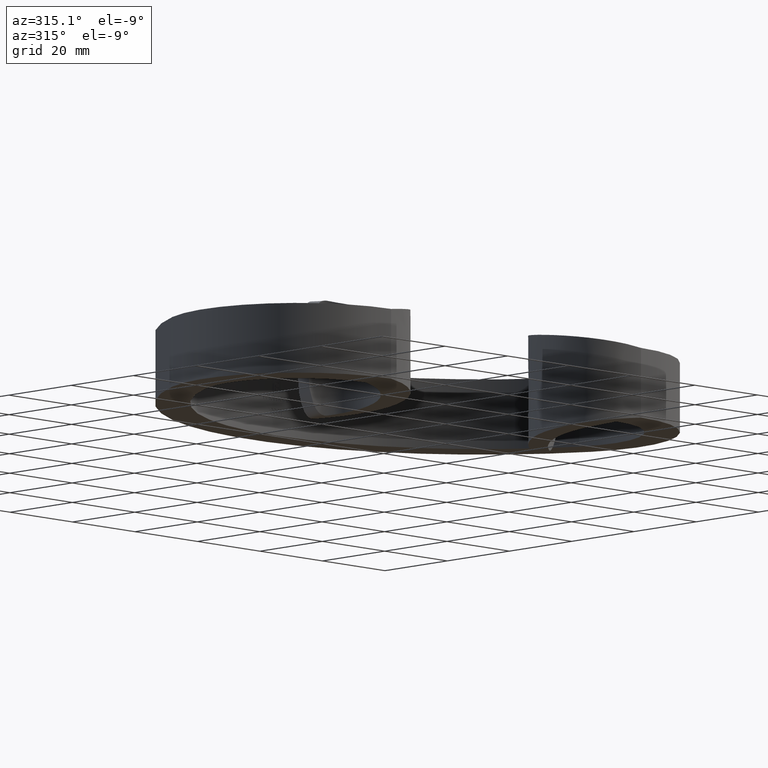
[diagram: clean part render]
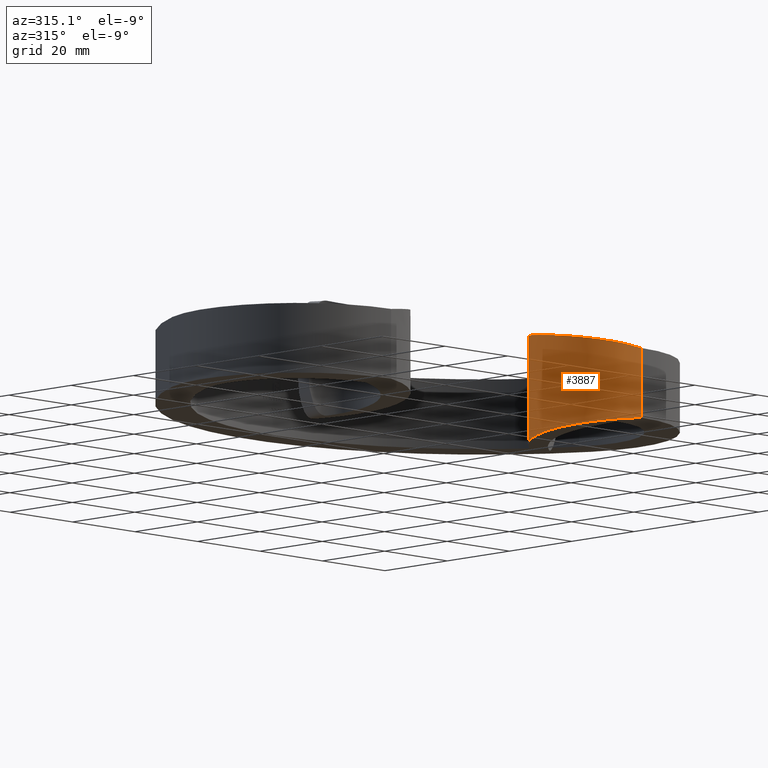
[diagram: same view with one face highlighted and labeled with its STEP entity id]
A machine part, auxiliary view. The second image highlights one B-rep face of the part: STEP entity #3887.
In plain terms, the highlighted face is a freeform B-spline surface patch.
Its self-contained STEP definition (entity closure, byte-faithful):
#24 = CARTESIAN_POINT ( 'NONE',  ( 37.29862764231974381, -12.74606910560912887, 12.92132388384466424 ) ) ;
#68 = CARTESIAN_POINT ( 'NONE',  ( 29.25184079106775314, -38.21318353949611435, 9.503446292758994218 ) ) ;
#74 = CARTESIAN_POINT ( 'NONE',  ( 39.01710257286399042, -12.55518140007928096, 13.87492381433971111 ) ) ;
#93 = CARTESIAN_POINT ( 'NONE',  ( 39.19997641045297598, -12.54735518590130461, 9.413016045099492857 ) ) ;
#178 = CARTESIAN_POINT ( 'NONE',  ( 39.80767790704334885, -12.51083109698406659, 6.511126165595791271 ) ) ;
#200 = LINE ( 'NONE', #1069, #4706 ) ;
#213 = ORIENTED_EDGE ( 'NONE', *, *, #7990, .T. ) ;
#216 = B_SPLINE_CURVE_WITH_KNOTS ( 'NONE', 3,
 ( #10016, #4314, #10982, #661, #2444, #11071, #6308, #2622, #1624, #3479, #9082, #10945, #11869, #11832, #581, #7281 ),
 .UNSPECIFIED., .F., .F.,
 ( 4, 1, 1, 1, 1, 1, 1, 1, 1, 1, 1, 1, 1, 4 ),
 ( 0.000000000000000000, 0.07643944691584819706, 0.1540096069160411529, 0.2330094117785480312, 0.3131500124201943014, 0.3945330707136094905, 0.4773147407482481452, 0.5401686603511797191, 0.6038891507428142402, 0.6681790321241890540, 0.7333217182116463784, 0.7990563422923470105, 0.8656197462576271651, 0.9027524826641176725 ),
 .UNSPECIFIED. ) ;
#255 = CARTESIAN_POINT ( 'NONE',  ( 39.81209067395823809, -12.51058108861385598, 6.477346912635616683 ) ) ;
#508 = CARTESIAN_POINT ( 'NONE',  ( 38.37130600898095878, -12.61208654869303025, -11.48021962687403885 ) ) ;
#543 = CARTESIAN_POINT ( 'NONE',  ( 37.46810401790398970, -12.72042704771613231, -12.75359945979227483 ) ) ;
#581 = CARTESIAN_POINT ( 'NONE',  ( 35.27376873676498548, -13.24552783198185679, -13.38836232621470756 ) ) ;
#627 = CARTESIAN_POINT ( 'NONE',  ( 39.83221756762518595, -12.50944203243038721, -6.317923149112874448 ) ) ;
#647 = CARTESIAN_POINT ( 'NONE',  ( 40.00000000000000000, -42.49999999999998579, 8.000000000000000000 ) ) ;
#661 = CARTESIAN_POINT ( 'NONE',  ( 32.38241363854125154, -40.60731167138313680, -9.004700799622668228 ) ) ;
#763 = CARTESIAN_POINT ( 'NONE',  ( 29.25184079106775314, -38.21318353949611435, 9.503446292758994218 ) ) ;
#823 = CARTESIAN_POINT ( 'NONE',  ( 39.99999999999997158, -12.50000000000004974, 3.545507528704540334 ) ) ;
#913 = CARTESIAN_POINT ( 'NONE',  ( 26.05590940528936272, -21.71262454500754302, 11.75140612995420675 ) ) ;
#921 = CARTESIAN_POINT ( 'NONE',  ( 37.05083497999392250, -12.66557074052261100, 13.62471128583585589 ) ) ;
#942 = CARTESIAN_POINT ( 'NONE',  ( 38.07910517191147193, -12.64190911677608575, 11.97497403436420704 ) ) ;
#980 = CARTESIAN_POINT ( 'NONE',  ( 38.80757764964339884, -12.57488187159106019, 10.54789356230748076 ) ) ;
#1019 = CARTESIAN_POINT ( 'NONE',  ( 36.01891193912119604, -13.02619226180549106, 13.48720801472414976 ) ) ;
#1069 = CARTESIAN_POINT ( 'NONE',  ( 39.99999999999997158, -12.50000000000004974, 14.00000000000000000 ) ) ;
#1181 = CARTESIAN_POINT ( 'NONE',  ( 39.21734304168334972, -12.54622589925770981, 9.354587291926364401 ) ) ;
#1279 = CARTESIAN_POINT ( 'NONE',  ( 39.99999999999997158, -12.50000000000004974, -3.545507529711071637 ) ) ;
#1290 = ORIENTED_EDGE ( 'NONE', *, *, #3238, .T. ) ;
#1462 = B_SPLINE_SURFACE_WITH_KNOTS ( 'NONE', 1, 3, ( 
 ( #1722, #1590, #9180, #8264, #763, #7429, #1677, #5469, #1885, #10316, #2850, #7561, #4744, #1812, #921, #74, #6543 ),
 ( #11258, #2924, #4628, #2768, #9396, #9430, #12144, #11363, #4586, #5611, #3704, #3849, #7629, #5682, #6667, #8488, #11222 ) ),
 .UNSPECIFIED., .F., .F., .F.,
 ( 2, 2 ),
 ( 4, 1, 1, 1, 1, 1, 1, 1, 1, 1, 1, 1, 1, 1, 4 ),
 ( 0.000000000000000000, 1.000000000000000000 ),
 ( 0.000000000000000000, 0.07643944691584819706, 0.1540096069160411529, 0.2330094117785480312, 0.3131500124201943014, 0.3945330707136094905, 0.4773147407482481452, 0.5401686603511797191, 0.6038891507428142402, 0.6681790321241890540, 0.7333217182116463784, 0.7990563422923470105, 0.8656197462576271651, 0.9328260272710567902, 1.000000000000000000 ),
 .UNSPECIFIED. ) ;
#1506 = CARTESIAN_POINT ( 'NONE',  ( 39.08791007719344890, -12.55454230701607266, -9.803116106679388153 ) ) ;
#1590 = CARTESIAN_POINT ( 'NONE',  ( 38.68746648217916118, -42.39879736232403928, 8.167136860540608723 ) ) ;
#1624 = CARTESIAN_POINT ( 'NONE',  ( 25.19733021883143920, -24.53388138580784528, -11.37779541540063555 ) ) ;
#1677 = CARTESIAN_POINT ( 'NONE',  ( 25.33521997203124698, -31.39402598544253209, 10.50442781793250546 ) ) ;
#1722 = CARTESIAN_POINT ( 'NONE',  ( 40.00000000000001421, -42.50000000000000711, 8.000000000000000000 ) ) ;
#1812 = CARTESIAN_POINT ( 'NONE',  ( 34.23629465016007600, -13.55430790121540419, 13.25192717049105617 ) ) ;
#1832 = CARTESIAN_POINT ( 'NONE',  ( 38.02207724577230152, -12.64823826273697982, 12.06200927439519077 ) ) ;
#1869 = CARTESIAN_POINT ( 'NONE',  ( 38.08682525757591719, -12.64106418480310801, 11.96298757429477710 ) ) ;
#1885 = CARTESIAN_POINT ( 'NONE',  ( 25.19733021883143920, -24.53388138580784528, 11.37779541540063377 ) ) ;
#1986 = CARTESIAN_POINT ( 'NONE',  ( 39.62077276828788541, -12.52153642898252528, 7.686744082658159449 ) ) ;
#2027 = CARTESIAN_POINT ( 'NONE',  ( 39.22967689582918638, -12.54542734868828902, 9.312656471300529759 ) ) ;
#2065 = CARTESIAN_POINT ( 'NONE',  ( 39.66530259387380397, -12.51896180625841026, 7.444922996180748598 ) ) ;
#2117 = EDGE_CURVE ( 'NONE', #9697, #9240, #216, .T. ) ;
#2325 = CARTESIAN_POINT ( 'NONE',  ( 38.10218519532698878, -12.63939293392273022, -11.93896470505600682 ) ) ;
#2365 = CARTESIAN_POINT ( 'NONE',  ( 39.47790584736532793, -12.52996484017449319, -8.366674763846742024 ) ) ;
#2408 = CARTESIAN_POINT ( 'NONE',  ( 39.91054606326733989, -12.50502421543450282, -5.601592000352023426 ) ) ;
#2420 = B_SPLINE_CURVE_WITH_KNOTS ( 'NONE', 3,
 ( #8095, #7117, #8057, #2408, #9979, #5166, #627, #9045, #11919, #10951, #7201, #11760, #2365, #9006, #8960, #3281, #3362, #7080, #3319, #9943, #4240, #1506, #3445, #2450, #10910, #508, #5252, #10874, #7244, #9902, #11797, #9089, #2325, #3403, #6190, #10986, #6275, #543, #8182, #10061, #11838, #10022, #9131, #6231, #4318, #5288, #4200, #7158 ),
 .UNSPECIFIED., .F., .F.,
 ( 4, 1, 1, 1, 1, 2, 2, 2, 2, 1, 1, 1, 1, 2, 2, 2, 2, 1, 1, 1, 1, 1, 2, 2, 2, 2, 1, 1, 1, 2, 2, 4 ),
 ( 0.000000000000000000, 0.1249999999999966416, 0.1874999999999948097, 0.2187499999999939493, 0.2343749999999934219, 0.2421874999999930611, 0.2499999999999926725, 0.3749999999999865663, 0.4374999999999836242, 0.4687499999999821809, 0.4843749999999817368, 0.4921874999999819589, 0.4960937499999820699, 0.4980468749999821254, 0.4999999999999821809, 0.6249999999999811262, 0.6874999999999805711, 0.7187499999999797939, 0.7343749999999791278, 0.7421874999999781286, 0.7460937499999777955, 0.7480468749999782396, 0.7490234374999784617, 0.7499999999999786837, 0.8124999999999835687, 0.8437499999999855671, 0.8593749999999873435, 0.8671874999999874545, 0.8710937499999876765, 0.8730468749999884537, 0.8749999999999891198, 1.000000000000000000 ),
 .UNSPECIFIED. ) ;
#2444 = CARTESIAN_POINT ( 'NONE',  ( 29.25184079106775314, -38.21318353949611435, -9.503446292758999547 ) ) ;
#2450 = CARTESIAN_POINT ( 'NONE',  ( 38.62716495390422011, -12.58928020139541815, -10.96860529128226780 ) ) ;
#2622 = CARTESIAN_POINT ( 'NONE',  ( 24.87033295036835412, -27.80776863644313579, -10.96081425774909057 ) ) ;
#2715 = CARTESIAN_POINT ( 'NONE',  ( 26.84580894462402512, -35.05877054887470479, 10.00383071811035052 ) ) ;
#2754 = CARTESIAN_POINT ( 'NONE',  ( 37.10365236991736282, -12.78077726580409035, 13.06906585817377398 ) ) ;
#2768 = CARTESIAN_POINT ( 'NONE',  ( 32.38241363854125154, -40.60731167138313680, -9.004700799622668228 ) ) ;
#2850 = CARTESIAN_POINT ( 'NONE',  ( 27.45806106993893536, -19.09484801626853567, 12.12772151566155543 ) ) ;
#2870 = CARTESIAN_POINT ( 'NONE',  ( 37.95512529771298205, -12.65587441767542920, 12.16075678187272757 ) ) ;
#2924 = CARTESIAN_POINT ( 'NONE',  ( 38.68746648217916118, -42.39879736232403928, -8.167136860540608723 ) ) ;
#3026 = CARTESIAN_POINT ( 'NONE',  ( 39.22474835837039109, -12.54574620258749817, 9.329442633762308645 ) ) ;
#3238 = EDGE_CURVE ( 'NONE', #6639, #9240, #2420, .T. ) ;
#3281 = CARTESIAN_POINT ( 'NONE',  ( 39.29905651566070190, -12.54099010926559643, -9.069264074020793487 ) ) ;
#3319 = CARTESIAN_POINT ( 'NONE',  ( 39.25254712197023110, -12.54395475112463032, -9.233830524549331287 ) ) ;
#3362 = CARTESIAN_POINT ( 'NONE',  ( 39.27207681382706994, -12.54270505402697466, -9.165432683133198921 ) ) ;
#3403 = CARTESIAN_POINT ( 'NONE',  ( 38.10105192132130014, -12.63951571670944674, -11.94074642428696897 ) ) ;
#3445 = CARTESIAN_POINT ( 'NONE',  ( 38.91384058479796693, -12.56645828140503696, -10.29777622002363557 ) ) ;
#3466 = DIRECTION ( 'NONE',  ( 0.000000000000000000, 0.000000000000000000, -1.000000000000000000 ) ) ;
#3479 = CARTESIAN_POINT ( 'NONE',  ( 26.05590940528936272, -21.71262454500754302, -11.75140612995421208 ) ) ;
#3628 = VERTEX_POINT ( 'NONE', #823 ) ;
#3704 = CARTESIAN_POINT ( 'NONE',  ( 27.45806106993893536, -19.09484801626853567, -12.12772151566153234 ) ) ;
#3797 = CARTESIAN_POINT ( 'NONE',  ( 39.02958865476692552, -12.55881556869204019, 9.945505563500859125 ) ) ;
#3849 = CARTESIAN_POINT ( 'NONE',  ( 29.33266354703817314, -16.81741441169711138, -12.50148243620112964 ) ) ;
#3887 = ADVANCED_FACE ( 'NONE', ( #10222 ), #1462, .F. ) ;
#3905 = CARTESIAN_POINT ( 'NONE',  ( 39.75518447727354499, -12.51381228913332322, 6.889504973989690306 ) ) ;
#4020 = CARTESIAN_POINT ( 'NONE',  ( 39.78641453998773869, -12.51203704308514375, 6.669443938089033352 ) ) ;
#4025 = ORIENTED_EDGE ( 'NONE', *, *, #5495, .T. ) ;
#4029 = CARTESIAN_POINT ( 'NONE',  ( 35.79395304833320068, -13.09240974371932253, -13.45737794795045694 ) ) ;
#4200 = CARTESIAN_POINT ( 'NONE',  ( 36.24561664460778587, -12.95946089280361413, -13.51727810697719967 ) ) ;
#4240 = CARTESIAN_POINT ( 'NONE',  ( 39.24712706253949790, -12.54430269983731350, -9.252655356265069742 ) ) ;
#4314 = CARTESIAN_POINT ( 'NONE',  ( 38.68746648217916118, -42.39879736232403928, -8.167136860540608723 ) ) ;
#4318 = CARTESIAN_POINT ( 'NONE',  ( 37.14300966077141197, -12.77375008783819510, -13.03940881655805306 ) ) ;
#4580 = CARTESIAN_POINT ( 'NONE',  ( 24.87033295036835412, -27.80776863644313579, 10.96081425774909412 ) ) ;
#4586 = CARTESIAN_POINT ( 'NONE',  ( 25.19733021883143920, -24.53388138580784528, -11.37779541540063555 ) ) ;
#4628 = CARTESIAN_POINT ( 'NONE',  ( 36.04298409383513047, -42.19489507003635964, -8.503882915511125518 ) ) ;
#4691 = CARTESIAN_POINT ( 'NONE',  ( 37.08296777211270268, -12.78451269207606522, 13.08431620026657427 ) ) ;
#4706 = VECTOR ( 'NONE', #10535, 1000.000000000000000 ) ;
#4744 = CARTESIAN_POINT ( 'NONE',  ( 31.62695320964726520, -14.93357274144184998, 12.87747321097610431 ) ) ;
#4770 = CARTESIAN_POINT ( 'NONE',  ( 36.74419631286421861, -12.85040653641364727, 13.29748079346355638 ) ) ;
#4853 = CARTESIAN_POINT ( 'NONE',  ( 39.79924624603342664, -12.51130911792110822, 6.574532984270911484 ) ) ;
#4892 = CARTESIAN_POINT ( 'NONE',  ( 39.47541436109092672, -12.53007725156213681, 8.399073867107670566 ) ) ;
#4930 = B_SPLINE_CURVE_WITH_KNOTS ( 'NONE', 3,
 ( #6722, #1019, #11282, #5633, #4770, #8432, #5745, #4691, #2754, #10296, #5593, #24, #6647, #12166, #8582, #2870, #1832, #6609, #11353, #942, #7580, #1869, #8509, #5667, #980, #9488, #3797, #10408, #5702, #93, #1181, #3026, #2027, #8661, #9642, #4892, #1986, #2065, #10524, #3905, #4020, #4853, #178, #255, #5874, #11461, #5831 ),
 .UNSPECIFIED., .F., .F.,
 ( 4, 2, 1, 1, 1, 1, 2, 2, 2, 1, 1, 1, 1, 1, 2, 2, 2, 2, 1, 1, 1, 1, 2, 2, 2, 2, 1, 1, 2, 2, 4 ),
 ( 0.000000000000000000, 0.06250000000010744183, 0.09375000000016121826, 0.1093750000001882106, 0.1171875000002016859, 0.1210937500002084583, 0.1230468750002117334, 0.1250000000002149947, 0.1875000000002757516, 0.2187500000003053668, 0.2343750000003200218, 0.2421875000003270439, 0.2460937500003304024, 0.2480468750003314848, 0.2490234375003319012, 0.2500000000003322898, 0.3750000000002843836, 0.4375000000002600697, 0.4687500000002477463, 0.4843750000002411404, 0.4921875000002376432, 0.4960937500002357003, 0.4980468750002347567, 0.5000000000002337019, 0.6250000000001750822, 0.6875000000001457723, 0.7187500000001311173, 0.7343750000001239009, 0.7421875000001202372, 0.7500000000001165734, 1.000000000000000000 ),
 .UNSPECIFIED. ) ;
#5166 = CARTESIAN_POINT ( 'NONE',  ( 39.84310123264024384, -12.50882673381629040, -6.228628696938650400 ) ) ;
#5252 = CARTESIAN_POINT ( 'NONE',  ( 38.29170730430028158, -12.61969098982939563, -11.62570812575996371 ) ) ;
#5267 = ORIENTED_EDGE ( 'NONE', *, *, #5542, .T. ) ;
#5288 = CARTESIAN_POINT ( 'NONE',  ( 36.69357708853227251, -12.85349044598287094, -13.38216029347841207 ) ) ;
#5376 = VERTEX_POINT ( 'NONE', #6271 ) ;
#5469 = CARTESIAN_POINT ( 'NONE',  ( 24.87033295036835412, -27.80776863644313579, 10.96081425774909412 ) ) ;
#5495 = EDGE_CURVE ( 'NONE', #8564, #5376, #8289, .T. ) ;
#5506 = CARTESIAN_POINT ( 'NONE',  ( 35.27376873454707606, -13.24552783278278767, 13.38836232591572184 ) ) ;
#5542 = EDGE_CURVE ( 'NONE', #3628, #6639, #200, .T. ) ;
#5593 = CARTESIAN_POINT ( 'NONE',  ( 37.12599139352469990, -12.77677282388260416, 13.05235985921738795 ) ) ;
#5604 = CARTESIAN_POINT ( 'NONE',  ( 25.33521997203124698, -31.39402598544253209, 10.50442781793250546 ) ) ;
#5611 = CARTESIAN_POINT ( 'NONE',  ( 26.05590940528936272, -21.71262454500754302, -11.75140612995421208 ) ) ;
#5633 = CARTESIAN_POINT ( 'NONE',  ( 36.57740238067741245, -12.88745994073680734, 13.36686799954718197 ) ) ;
#5642 = CARTESIAN_POINT ( 'NONE',  ( 33.84295905362245094, -13.76222011626351183, 13.19548148298733636 ) ) ;
#5667 = CARTESIAN_POINT ( 'NONE',  ( 38.52089944263796184, -12.59781801684789038, 11.21398455712261466 ) ) ;
#5682 = CARTESIAN_POINT ( 'NONE',  ( 34.23629465016007600, -13.55430790121540419, -13.25192717049105617 ) ) ;
#5702 = CARTESIAN_POINT ( 'NONE',  ( 39.16489303066778405, -12.54965441921077307, 9.528904954600301735 ) ) ;
#5745 = CARTESIAN_POINT ( 'NONE',  ( 37.03467686859433172, -12.79336772027141222, 13.11887199442940144 ) ) ;
#5831 = CARTESIAN_POINT ( 'NONE',  ( 39.99999999999997158, -12.50000000000004974, 3.545507528704540334 ) ) ;
#5874 = CARTESIAN_POINT ( 'NONE',  ( 39.93863496979133032, -12.50341542069270240, 5.493065830248834658 ) ) ;
#6190 = CARTESIAN_POINT ( 'NONE',  ( 37.94650630233762456, -12.65629502830084263, -12.18311131161203242 ) ) ;
#6231 = CARTESIAN_POINT ( 'NONE',  ( 37.14662017872773703, -12.77311313770421286, -13.03662581832179868 ) ) ;
#6271 = CARTESIAN_POINT ( 'NONE',  ( 35.79395304524511801, -13.09240974480877817, 13.45737794553074274 ) ) ;
#6275 = CARTESIAN_POINT ( 'NONE',  ( 37.54936792816567959, -12.70850219651844526, -12.66884928520555853 ) ) ;
#6308 = CARTESIAN_POINT ( 'NONE',  ( 25.33521997203124698, -31.39402598544253209, -10.50442781793251612 ) ) ;
#6492 = CARTESIAN_POINT ( 'NONE',  ( 29.33266354703817314, -16.81741441169711138, 12.50148243620112432 ) ) ;
#6543 = CARTESIAN_POINT ( 'NONE',  ( 39.99999999999997158, -12.50000000000004974, 14.00000000000000000 ) ) ;
#6594 = ORIENTED_EDGE ( 'NONE', *, *, #11000, .F. ) ;
#6609 = CARTESIAN_POINT ( 'NONE',  ( 38.05538413729744462, -12.64452232033914036, 12.01150881495299494 ) ) ;
#6629 = LINE ( 'NONE', #647, #10428 ) ;
#6639 = VERTEX_POINT ( 'NONE', #1279 ) ;
#6647 = CARTESIAN_POINT ( 'NONE',  ( 37.46223298052788664, -12.72064496300444603, 12.76730743823151570 ) ) ;
#6667 = CARTESIAN_POINT ( 'NONE',  ( 37.05083497999392250, -12.66557074052261100, -13.62471128583585589 ) ) ;
#6722 = CARTESIAN_POINT ( 'NONE',  ( 35.79395304524511801, -13.09240974480877817, 13.45737794553074274 ) ) ;
#7080 = CARTESIAN_POINT ( 'NONE',  ( 39.25842962510142087, -12.54357755792115547, -9.213338035155860695 ) ) ;
#7117 = CARTESIAN_POINT ( 'NONE',  ( 39.99999999999997868, -12.50000000000004974, -4.032928411676128810 ) ) ;
#7158 = CARTESIAN_POINT ( 'NONE',  ( 35.79395304833320068, -13.09240974371932253, -13.45737794795045694 ) ) ;
#7201 = CARTESIAN_POINT ( 'NONE',  ( 39.67266235390589202, -12.51849338026984704, -7.429191661807562852 ) ) ;
#7244 = CARTESIAN_POINT ( 'NONE',  ( 38.14761433803234780, -12.63451750387928385, -11.86672335873445583 ) ) ;
#7281 = CARTESIAN_POINT ( 'NONE',  ( 35.79395304833320068, -13.09240974371932253, -13.45737794795045694 ) ) ;
#7422 = CARTESIAN_POINT ( 'NONE',  ( 40.00000000000001421, -42.50000000000000711, 8.000000000000000000 ) ) ;
#7429 = CARTESIAN_POINT ( 'NONE',  ( 26.84580894462402512, -35.05877054887470479, 10.00383071811035052 ) ) ;
#7536 = CARTESIAN_POINT ( 'NONE',  ( 40.00000000000001421, -42.50000000000000711, -8.000000000000000000 ) ) ;
#7553 = CARTESIAN_POINT ( 'NONE',  ( 32.38241363854125154, -40.60731167138313680, 9.004700799622668228 ) ) ;
#7561 = CARTESIAN_POINT ( 'NONE',  ( 29.33266354703817314, -16.81741441169711138, 12.50148243620112432 ) ) ;
#7580 = CARTESIAN_POINT ( 'NONE',  ( 38.08384311795057187, -12.64139012480512392, 11.96762546157398255 ) ) ;
#7589 = CARTESIAN_POINT ( 'NONE',  ( 25.19733021883143920, -24.53388138580784528, 11.37779541540063377 ) ) ;
#7629 = CARTESIAN_POINT ( 'NONE',  ( 31.62695320964726520, -14.93357274144184998, -12.87747321097610431 ) ) ;
#7990 = EDGE_CURVE ( 'NONE', #5376, #3628, #4930, .T. ) ;
#8057 = CARTESIAN_POINT ( 'NONE',  ( 39.97716048627631125, -12.50128156513625477, -4.760517686162399897 ) ) ;
#8095 = CARTESIAN_POINT ( 'NONE',  ( 39.99999999999997158, -12.50000000000004974, -3.545507529711071637 ) ) ;
#8182 = CARTESIAN_POINT ( 'NONE',  ( 37.34471276917322058, -12.73975094172303635, -12.87044823166126228 ) ) ;
#8191 = EDGE_LOOP ( 'NONE', ( #5267, #1290, #9869, #6594, #4025, #213 ) ) ;
#8264 = CARTESIAN_POINT ( 'NONE',  ( 32.38241363854125154, -40.60731167138313680, 9.004700799622668228 ) ) ;
#8289 = B_SPLINE_CURVE_WITH_KNOTS ( 'NONE', 3,
 ( #7422, #10378, #8441, #7553, #68, #2715, #5604, #4580, #7589, #913, #12176, #6492, #8396, #5642, #5506, #9387 ),
 .UNSPECIFIED., .F., .F.,
 ( 4, 1, 1, 1, 1, 1, 1, 1, 1, 1, 1, 1, 1, 4 ),
 ( 0.000000000000000000, 0.07643944691584819706, 0.1540096069160411529, 0.2330094117785480312, 0.3131500124201943014, 0.3945330707136094905, 0.4773147407482481452, 0.5401686603511797191, 0.6038891507428142402, 0.6681790321241890540, 0.7333217182116463784, 0.7990563422923470105, 0.8656197462576270540, 0.9027524825837476286 ),
 .UNSPECIFIED. ) ;
#8396 = CARTESIAN_POINT ( 'NONE',  ( 31.62695320964726520, -14.93357274144184998, 12.87747321097610431 ) ) ;
#8432 = CARTESIAN_POINT ( 'NONE',  ( 36.93798888465928343, -12.81163643935529706, 13.18387473298643009 ) ) ;
#8441 = CARTESIAN_POINT ( 'NONE',  ( 36.04298409383513047, -42.19489507003635964, 8.503882915511125518 ) ) ;
#8488 = CARTESIAN_POINT ( 'NONE',  ( 39.01710257286399042, -12.55518140007928096, -13.87492381433971111 ) ) ;
#8509 = CARTESIAN_POINT ( 'NONE',  ( 38.31293327847913588, -12.61638704600789396, 11.61071110300901488 ) ) ;
#8564 = VERTEX_POINT ( 'NONE', #9182 ) ;
#8582 = CARTESIAN_POINT ( 'NONE',  ( 37.81987463989389653, -12.67199776794808663, 12.34924817730782287 ) ) ;
#8661 = CARTESIAN_POINT ( 'NONE',  ( 39.23258949061260381, -12.54523919298344126, 9.302701217225338937 ) ) ;
#8960 = CARTESIAN_POINT ( 'NONE',  ( 39.35175669204143389, -12.53767745021046309, -8.875497403835577614 ) ) ;
#9006 = CARTESIAN_POINT ( 'NONE',  ( 39.39476787364452548, -12.53502907559193957, -8.706968698061885448 ) ) ;
#9045 = CARTESIAN_POINT ( 'NONE',  ( 39.82484287877256435, -12.50985915749555488, -6.377425288795744329 ) ) ;
#9082 = CARTESIAN_POINT ( 'NONE',  ( 27.45806106993893536, -19.09484801626853567, -12.12772151566153234 ) ) ;
#9089 = CARTESIAN_POINT ( 'NONE',  ( 38.10569305939678486, -12.63901311085273704, -11.93344563851300144 ) ) ;
#9131 = CARTESIAN_POINT ( 'NONE',  ( 37.15713364853539247, -12.77126229035711091, -13.02848987198568764 ) ) ;
#9180 = CARTESIAN_POINT ( 'NONE',  ( 36.04298409383513047, -42.19489507003635964, 8.503882915511125518 ) ) ;
#9182 = CARTESIAN_POINT ( 'NONE',  ( 40.00000000000001421, -42.50000000000000711, 8.000000000000000000 ) ) ;
#9240 = VERTEX_POINT ( 'NONE', #4029 ) ;
#9387 = CARTESIAN_POINT ( 'NONE',  ( 35.79395304524511801, -13.09240974480877817, 13.45737794553074274 ) ) ;
#9396 = CARTESIAN_POINT ( 'NONE',  ( 29.25184079106775314, -38.21318353949611435, -9.503446292758999547 ) ) ;
#9430 = CARTESIAN_POINT ( 'NONE',  ( 26.84580894462402512, -35.05877054887470479, -10.00383071811032387 ) ) ;
#9488 = CARTESIAN_POINT ( 'NONE',  ( 38.89892911399436315, -12.56807852147599647, 10.31403360454526563 ) ) ;
#9642 = CARTESIAN_POINT ( 'NONE',  ( 39.36281253737049468, -12.53683558126912168, 8.856444166375956328 ) ) ;
#9697 = VERTEX_POINT ( 'NONE', #7536 ) ;
#9869 = ORIENTED_EDGE ( 'NONE', *, *, #2117, .F. ) ;
#9902 = CARTESIAN_POINT ( 'NONE',  ( 38.12320101089925117, -12.63712534222226225, -11.90576084883996444 ) ) ;
#9943 = CARTESIAN_POINT ( 'NONE',  ( 39.24861796338200293, -12.54420694310962503, -9.247483653014588967 ) ) ;
#9979 = CARTESIAN_POINT ( 'NONE',  ( 39.86724781726248068, -12.50746343809351480, -6.019989297912220039 ) ) ;
#10016 = CARTESIAN_POINT ( 'NONE',  ( 40.00000000000001421, -42.50000000000000711, -8.000000000000000000 ) ) ;
#10022 = CARTESIAN_POINT ( 'NONE',  ( 37.17289245135413012, -12.76849885956196751, -13.01620609430573339 ) ) ;
#10061 = CARTESIAN_POINT ( 'NONE',  ( 37.28264335433566146, -12.74977236177949003, -12.92630355444287638 ) ) ;
#10222 = FACE_OUTER_BOUND ( 'NONE', #8191, .T. ) ;
#10296 = CARTESIAN_POINT ( 'NONE',  ( 37.11743952150455783, -12.77830004873291259, 13.05880097205692714 ) ) ;
#10316 = CARTESIAN_POINT ( 'NONE',  ( 26.05590940528936272, -21.71262454500754302, 11.75140612995420675 ) ) ;
#10378 = CARTESIAN_POINT ( 'NONE',  ( 38.68746648217916118, -42.39879736232403928, 8.167136860540608723 ) ) ;
#10408 = CARTESIAN_POINT ( 'NONE',  ( 39.09332678585168708, -12.55442119162675318, 9.756807381584653882 ) ) ;
#10428 = VECTOR ( 'NONE', #3466, 1000.000000000000000 ) ;
#10524 = CARTESIAN_POINT ( 'NONE',  ( 39.72620574017868478, -12.51546731632223697, 7.075722399341907831 ) ) ;
#10535 = DIRECTION ( 'NONE',  ( 0.000000000000000000, 0.000000000000000000, -1.000000000000000000 ) ) ;
#10874 = CARTESIAN_POINT ( 'NONE',  ( 38.19610040624883140, -12.62942142424221359, -11.78767851668241384 ) ) ;
#10910 = CARTESIAN_POINT ( 'NONE',  ( 38.52734701536689244, -12.59772658354985531, -11.18035873395330171 ) ) ;
#10945 = CARTESIAN_POINT ( 'NONE',  ( 29.33266354703817314, -16.81741441169711138, -12.50148243620112964 ) ) ;
#10951 = CARTESIAN_POINT ( 'NONE',  ( 39.75269797953796314, -12.51394378841540522, -6.941290466492072042 ) ) ;
#10982 = CARTESIAN_POINT ( 'NONE',  ( 36.04298409383513047, -42.19489507003635964, -8.503882915511125518 ) ) ;
#10986 = CARTESIAN_POINT ( 'NONE',  ( 37.79009997814351607, -12.67520410240801532, -12.39393723989046592 ) ) ;
#11000 = EDGE_CURVE ( 'NONE', #8564, #9697, #6629, .T. ) ;
#11071 = CARTESIAN_POINT ( 'NONE',  ( 26.84580894462402512, -35.05877054887470479, -10.00383071811032387 ) ) ;
#11222 = CARTESIAN_POINT ( 'NONE',  ( 39.99999999999997158, -12.50000000000004974, -14.00000000000000000 ) ) ;
#11258 = CARTESIAN_POINT ( 'NONE',  ( 40.00000000000001421, -42.50000000000000711, -8.000000000000000000 ) ) ;
#11282 = CARTESIAN_POINT ( 'NONE',  ( 36.24297802708035476, -12.96663927877831668, 13.46865966389797364 ) ) ;
#11353 = CARTESIAN_POINT ( 'NONE',  ( 38.07199522232129141, -12.64268936408263144, 11.98597675460730727 ) ) ;
#11363 = CARTESIAN_POINT ( 'NONE',  ( 24.87033295036835412, -27.80776863644313579, -10.96081425774909057 ) ) ;
#11461 = CARTESIAN_POINT ( 'NONE',  ( 39.99999999999997158, -12.50000000000005151, 4.524116576037486404 ) ) ;
#11760 = CARTESIAN_POINT ( 'NONE',  ( 39.52948510572634433, -12.52689752248121202, -8.135496484624221480 ) ) ;
#11797 = CARTESIAN_POINT ( 'NONE',  ( 38.11095182037697526, -12.63844447760094702, -11.92515838183271093 ) ) ;
#11832 = CARTESIAN_POINT ( 'NONE',  ( 33.84295905467362786, -13.76222011570787807, -13.19548148313818636 ) ) ;
#11838 = CARTESIAN_POINT ( 'NONE',  ( 37.20958304236730640, -12.76213995495437992, -12.98698473541561960 ) ) ;
#11869 = CARTESIAN_POINT ( 'NONE',  ( 31.62695320964726520, -14.93357274144184998, -12.87747321097610431 ) ) ;
#11919 = CARTESIAN_POINT ( 'NONE',  ( 39.82132681475354019, -12.51005811881086061, -6.405360765501140641 ) ) ;
#12144 = CARTESIAN_POINT ( 'NONE',  ( 25.33521997203124698, -31.39402598544253209, -10.50442781793251612 ) ) ;
#12166 = CARTESIAN_POINT ( 'NONE',  ( 37.70165741637215007, -12.68739557930250328, 12.49541238297743639 ) ) ;
#12176 = CARTESIAN_POINT ( 'NONE',  ( 27.45806106993893536, -19.09484801626853567, 12.12772151566155543 ) ) ;